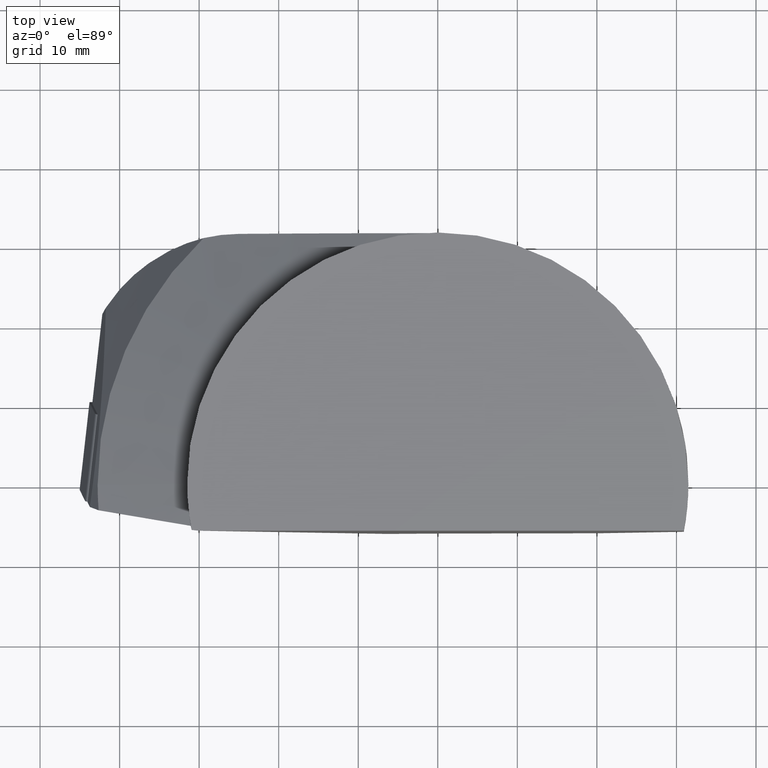
[diagram: clean part render]
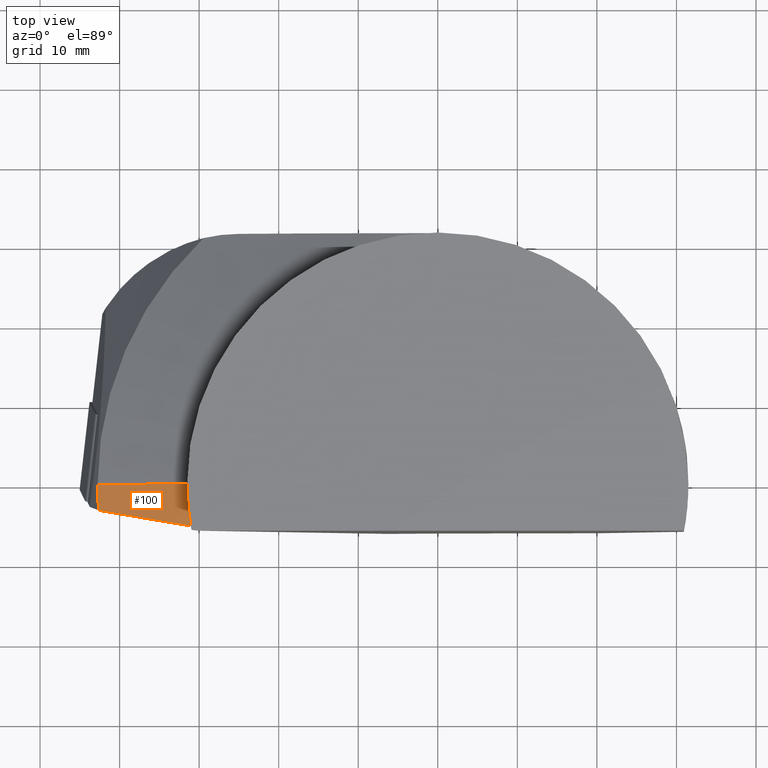
[diagram: same view with one face highlighted and labeled with its STEP entity id]
A machine part, top view. The second image highlights one B-rep face of the part: STEP entity #100.
In plain terms, the highlighted conical surface has half-angle 60 deg.
Its self-contained STEP definition (entity closure, byte-faithful):
#100=ADVANCED_FACE('',(#158),#159,.T.);
#158=FACE_OUTER_BOUND('',#222,.T.);
#159=CONICAL_SURFACE('',#223,33.1066753683403,1.0471975488034);
#222=EDGE_LOOP('',(#441,#442,#443,#444));
#223=AXIS2_PLACEMENT_3D('',#445,#446,#447);
#441=ORIENTED_EDGE('',*,*,#568,.T.);
#442=ORIENTED_EDGE('',*,*,#581,.T.);
#443=ORIENTED_EDGE('',*,*,#582,.F.);
#444=ORIENTED_EDGE('',*,*,#578,.F.);
#445=CARTESIAN_POINT('',(-1.33226762955019E-014,-1.11022302462516E-015,-5.92761444357608));
#446=DIRECTION('',(-0.0,0.0,-1.0));
#447=DIRECTION('',(-0.0844648582605607,0.996426458761018,0.0));
#568=EDGE_CURVE('',#698,#695,#699,.T.);
#578=EDGE_CURVE('',#698,#715,#716,.T.);
#581=EDGE_CURVE('',#695,#720,#721,.T.);
#582=EDGE_CURVE('',#715,#720,#722,.T.);
#695=VERTEX_POINT('',#932);
#698=VERTEX_POINT('',#936);
#699=LINE('',#937,#938);
#715=VERTEX_POINT('',#957);
#716=CIRCLE('',#958,31.5);
#720=VERTEX_POINT('',#962);
#721=CIRCLE('',#963,42.7583302491977);
#722=CIRCLE('',#964,1145.91929289209);
#932=CARTESIAN_POINT('',(-42.7583302491977,7.947789E-015,-11.5));
#936=CARTESIAN_POINT('',(-31.5,3.85751E-015,-5.0));
#937=CARTESIAN_POINT('',(-31.5,3.85751E-015,-5.0));
#938=VECTOR('',#1080,13.0);
#957=CARTESIAN_POINT('',(-31.0505383262985,-5.30227023519802,-5.0));
#958=AXIS2_PLACEMENT_3D('',#1102,#1103,#1104);
#962=CARTESIAN_POINT('',(-42.6361401153082,-3.23022627183659,-11.5));
#963=AXIS2_PLACEMENT_3D('',#1111,#1112,#1113);
#964=AXIS2_PLACEMENT_3D('',#1114,#1115,#1116);
#1080=DIRECTION('',(-0.866025403784438,3.146368E-016,-0.5));
#1102=CARTESIAN_POINT('',(0.0,1.608123E-015,-5.0));
#1103=DIRECTION('',(0.0,0.0,1.0));
#1104=DIRECTION('',(-1.0,0.0,0.0));
#1111=CARTESIAN_POINT('',(0.0,4.494703E-015,-11.5));
#1112=DIRECTION('',(0.0,0.0,1.0));
#1113=DIRECTION('',(-1.0,0.0,0.0));
#1114=CARTESIAN_POINT('',(530.403784613966,48.4669634173469,-1002.50134766145));
#1115=DIRECTION('',(-0.111468932180562,-0.98698112976316,-0.115943635659581));
#1116=DIRECTION('',(-0.489959743607473,-0.046922356562164,0.870481327828893));